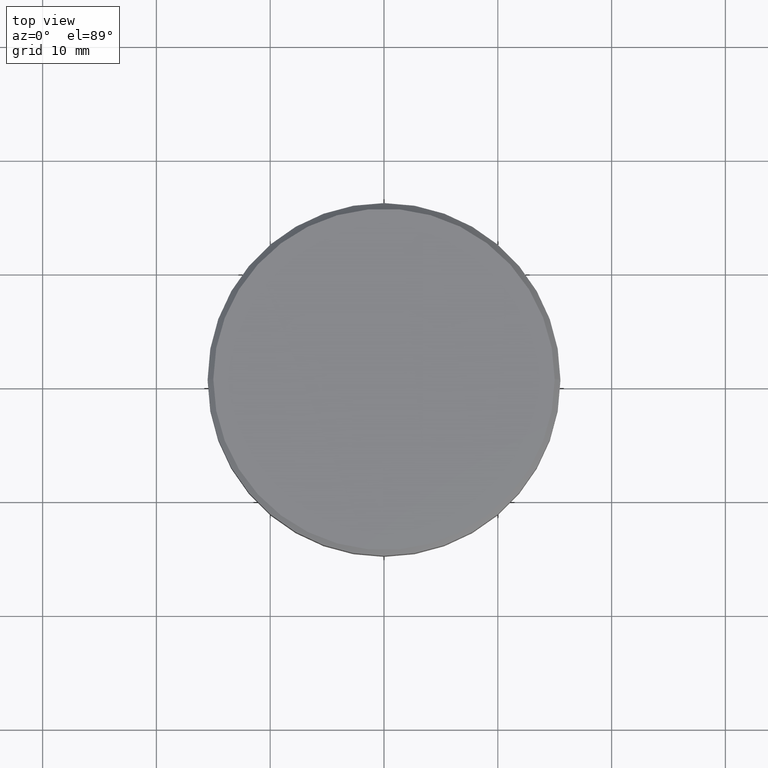
[diagram: clean part render]
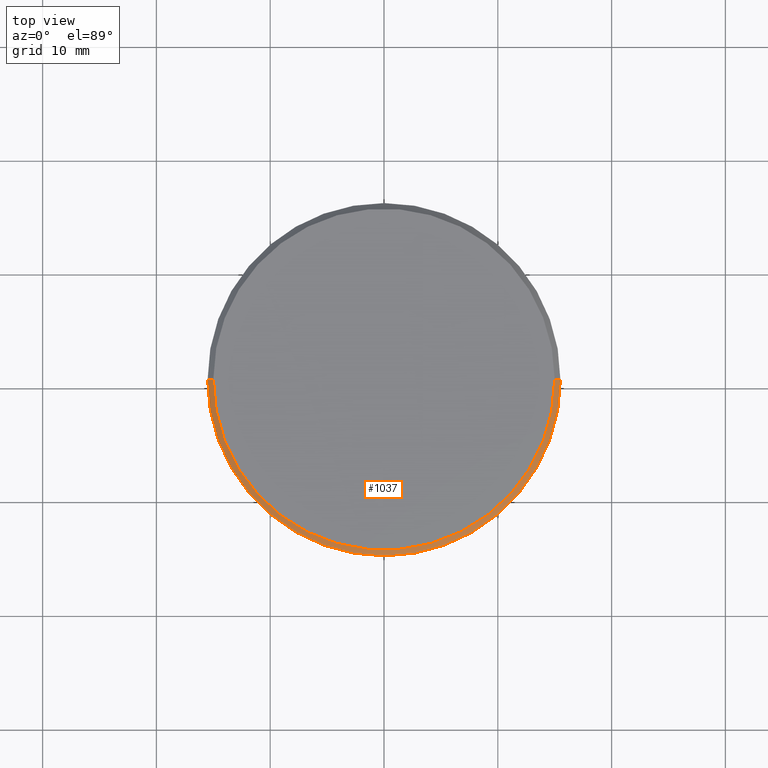
[diagram: same view with one face highlighted and labeled with its STEP entity id]
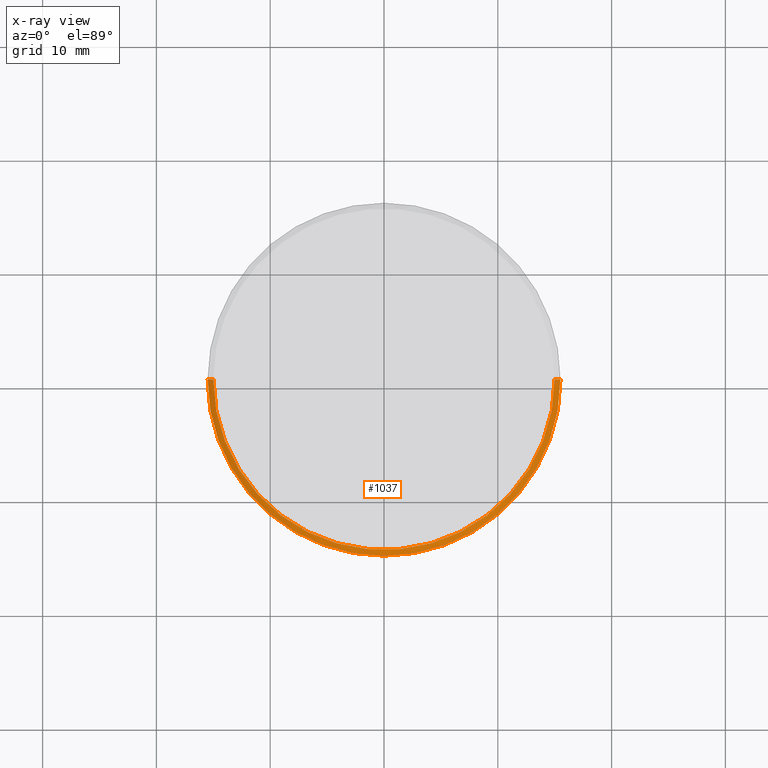
[diagram: x-ray of the same camera — body ghosted, the highlighted face saturated]
A machine part, top view. The second image highlights one B-rep face of the part: STEP entity #1037.
The next image is the same camera in x-ray: the body ghosted, the highlighted face saturated — about 0% of this face is hidden behind the body in this view.
In plain terms, the highlighted conical surface has half-angle 45 deg.
Its self-contained STEP definition (entity closure, byte-faithful):
#3 = DIRECTION ( 'NONE',  ( -0.000000000000000000, -0.000000000000000000, 1.000000000000000000 ) ) ;
#5 = EDGE_CURVE ( 'NONE', #31, #296, #699, .T. ) ;
#31 = VERTEX_POINT ( 'NONE', #253 ) ;
#64 = ORIENTED_EDGE ( 'NONE', *, *, #5, .F. ) ;
#119 = ORIENTED_EDGE ( 'NONE', *, *, #688, .F. ) ;
#174 = CARTESIAN_POINT ( 'NONE',  ( 15.00000000000000000, 1.836970198721029589E-15, 0.000000000000000000 ) ) ;
#190 = EDGE_LOOP ( 'NONE', ( #1047, #119, #214, #64 ) ) ;
#214 = ORIENTED_EDGE ( 'NONE', *, *, #712, .T. ) ;
#225 = AXIS2_PLACEMENT_3D ( 'NONE', #918, #1016, #934 ) ;
#253 = CARTESIAN_POINT ( 'NONE',  ( 15.50000000000000000, 0.000000000000000000, -0.5000000000000057732 ) ) ;
#288 = CARTESIAN_POINT ( 'NONE',  ( -15.50000000000000000, 1.898202538678397557E-15, -0.5000000000000057732 ) ) ;
#295 = LINE ( 'NONE', #491, #929 ) ;
#296 = VERTEX_POINT ( 'NONE', #288 ) ;
#299 = AXIS2_PLACEMENT_3D ( 'NONE', #331, #694, #1061 ) ;
#331 = CARTESIAN_POINT ( 'NONE',  ( 0.000000000000000000, 0.000000000000000000, -0.5000000000000057732 ) ) ;
#371 = DIRECTION ( 'NONE',  ( 1.000000000000000000, 0.000000000000000000, 0.000000000000000000 ) ) ;
#491 = CARTESIAN_POINT ( 'NONE',  ( -15.00000000000000000, 0.000000000000000000, 0.000000000000000000 ) ) ;
#587 = AXIS2_PLACEMENT_3D ( 'NONE', #897, #3, #371 ) ;
#637 = VERTEX_POINT ( 'NONE', #1138 ) ;
#653 = DIRECTION ( 'NONE',  ( 0.7071067811865439090, 8.659560562354888485E-17, -0.7071067811865512365 ) ) ;
#688 = EDGE_CURVE ( 'NONE', #1146, #637, #1102, .T. ) ;
#694 = DIRECTION ( 'NONE',  ( 0.000000000000000000, 0.000000000000000000, -1.000000000000000000 ) ) ;
#699 = CIRCLE ( 'NONE', #299, 15.50000000000000000 ) ;
#712 = EDGE_CURVE ( 'NONE', #1146, #296, #295, .T. ) ;
#743 = CONICAL_SURFACE ( 'NONE', #225, 15.00000000000000000, 0.7853981633974430610 ) ;
#814 = CARTESIAN_POINT ( 'NONE',  ( -15.00000000000000000, 0.000000000000000000, 0.000000000000000000 ) ) ;
#850 = DIRECTION ( 'NONE',  ( -0.7071067811865439090, 0.000000000000000000, -0.7071067811865512365 ) ) ;
#897 = CARTESIAN_POINT ( 'NONE',  ( 0.000000000000000000, 0.000000000000000000, 0.000000000000000000 ) ) ;
#913 = VECTOR ( 'NONE', #653, 999.9999999999998863 ) ;
#914 = FACE_OUTER_BOUND ( 'NONE', #190, .T. ) ;
#918 = CARTESIAN_POINT ( 'NONE',  ( 0.000000000000000000, 0.000000000000000000, 0.000000000000000000 ) ) ;
#929 = VECTOR ( 'NONE', #850, 999.9999999999998863 ) ;
#934 = DIRECTION ( 'NONE',  ( -1.000000000000000000, 0.000000000000000000, 0.000000000000000000 ) ) ;
#1016 = DIRECTION ( 'NONE',  ( 0.000000000000000000, 0.000000000000000000, -1.000000000000000000 ) ) ;
#1037 = ADVANCED_FACE ( 'NONE', ( #914 ), #743, .T. ) ;
#1047 = ORIENTED_EDGE ( 'NONE', *, *, #1137, .F. ) ;
#1061 = DIRECTION ( 'NONE',  ( 1.000000000000000000, 0.000000000000000000, 0.000000000000000000 ) ) ;
#1086 = LINE ( 'NONE', #174, #913 ) ;
#1102 = CIRCLE ( 'NONE', #587, 15.00000000000000000 ) ;
#1137 = EDGE_CURVE ( 'NONE', #637, #31, #1086, .T. ) ;
#1138 = CARTESIAN_POINT ( 'NONE',  ( 15.00000000000000000, 1.867586368699713376E-15, 0.000000000000000000 ) ) ;
#1146 = VERTEX_POINT ( 'NONE', #814 ) ;